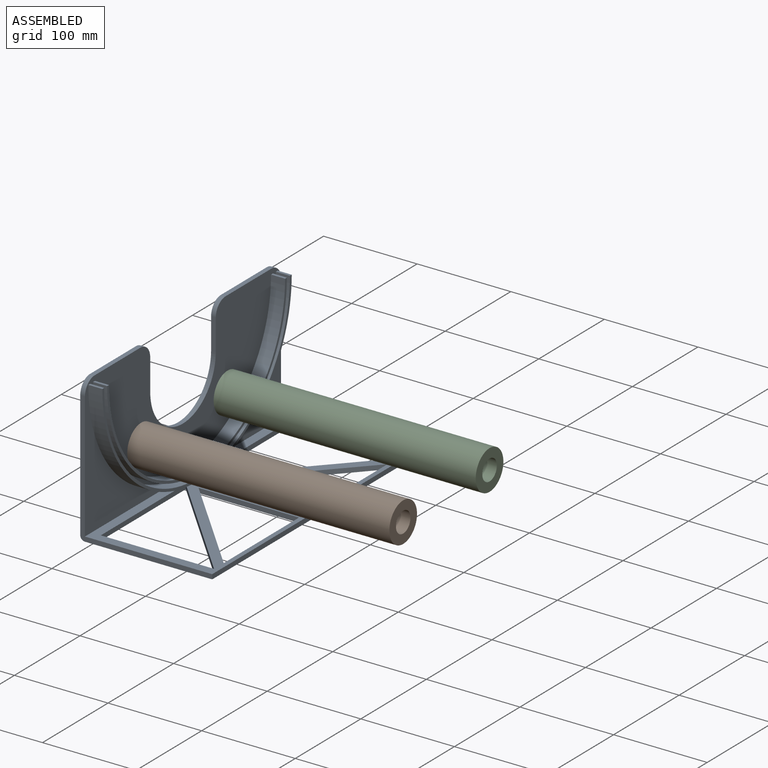
[diagram: assembled view]
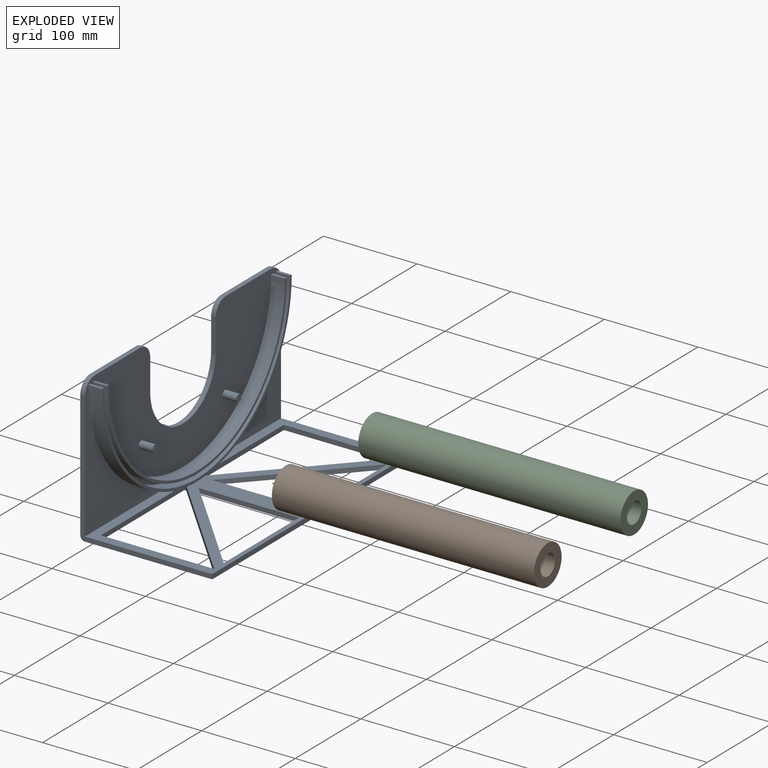
[diagram: exploded view]
GUIDED TOUR — FREECAD ASSEMBLY "filament dryer"

This assembly has 3 components, labeled P0..P2 below (a component is one placed body or linked part; the same part can appear more than once), held together by 2 modeled joints. A joint is a constraint between two components; its type names the relative motion it leaves free:
  CYLINDRICAL — leaves both rotation about and translation along the listed axis free.
Axis/direction vectors are unit vectors and 'through' points are millimeter coordinates, both in the assembly's world frame.

MATES
  1. CYLINDRICAL [Cylindrical] "Cl__ndrica": P2 <-> P0, axis (1.000, 0.000, 0.000) through (0.00, 67.85, 56.07) mm
  2. CYLINDRICAL [Cylindrical] "Cl__ndrica001": P1 <-> P0, axis (1.000, 0.000, 0.000) through (0.00, -63.92, 56.07) mm

ASSEMBLY ORDER
  1. P2 — the base component [order verified]
  2. P1 [order verified]
  3. P0 [order verified]
Order-tag legend:
  [order verified] — this step's position reverses a verified removal order: the component was checked to insert without passing through the ones already placed.

Of the 3 components, 3 carry a construction recipe — the FreeCAD feature program (sketches with constraints, then the solid features that consume them) that regenerates the part from scratch, quoted from this document or from the linked companion document it references; the rest are supplied as boundary geometry only. The tour below walks the components in assembly order: each is shown spotlighted twice — in the assembled view, then in the exploded view, where a leader line traces a displaced component back to its assembled socket (components that stay in place when exploded have no leader line; saturated green if recipe-attached, orange if geometry-only; every other component desaturated gray) — followed by its recipe or geometry summary and the mates that hold it.
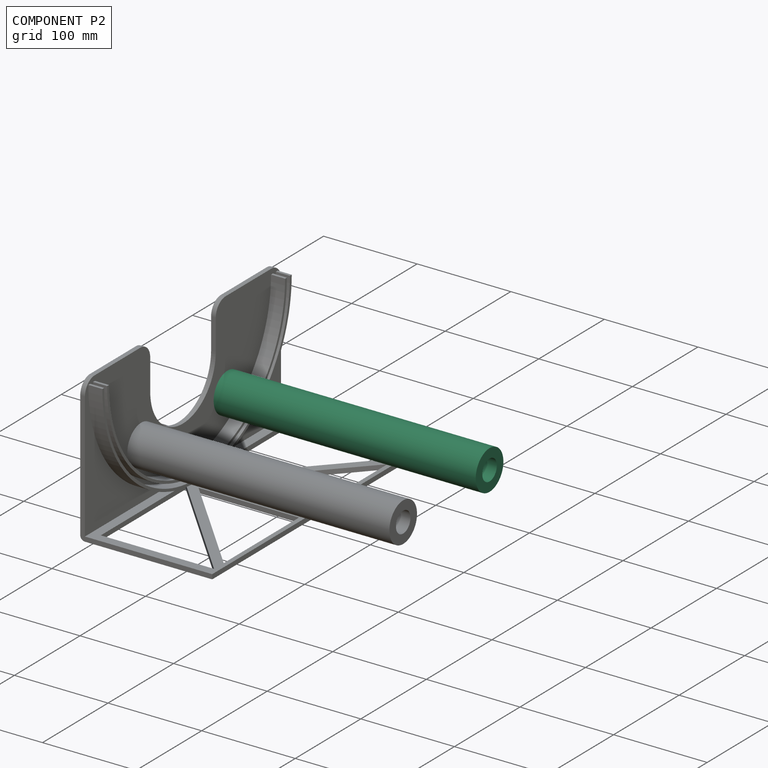
[diagram: component P2 — assembled]
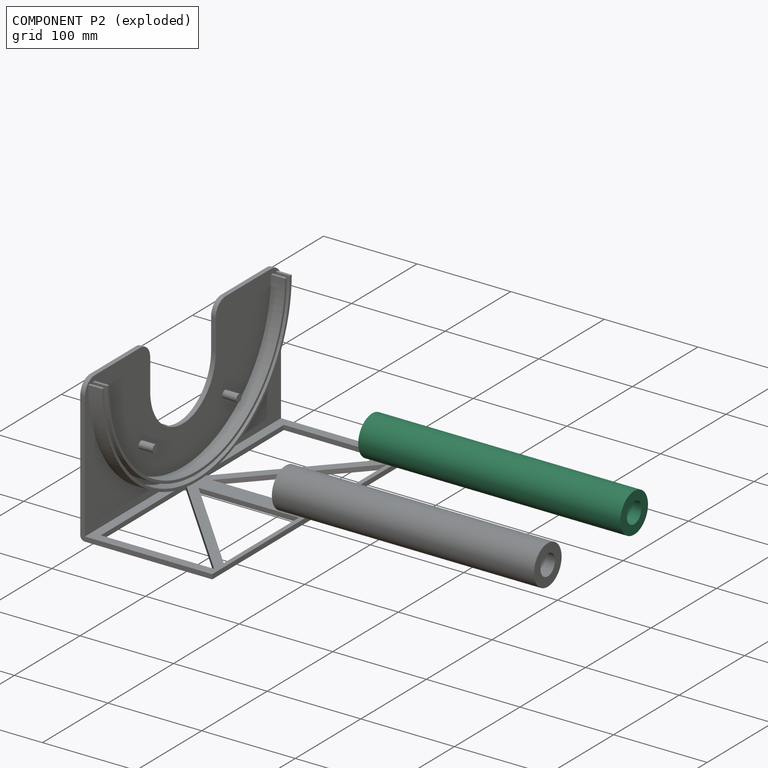
[diagram: component P2 — exploded]
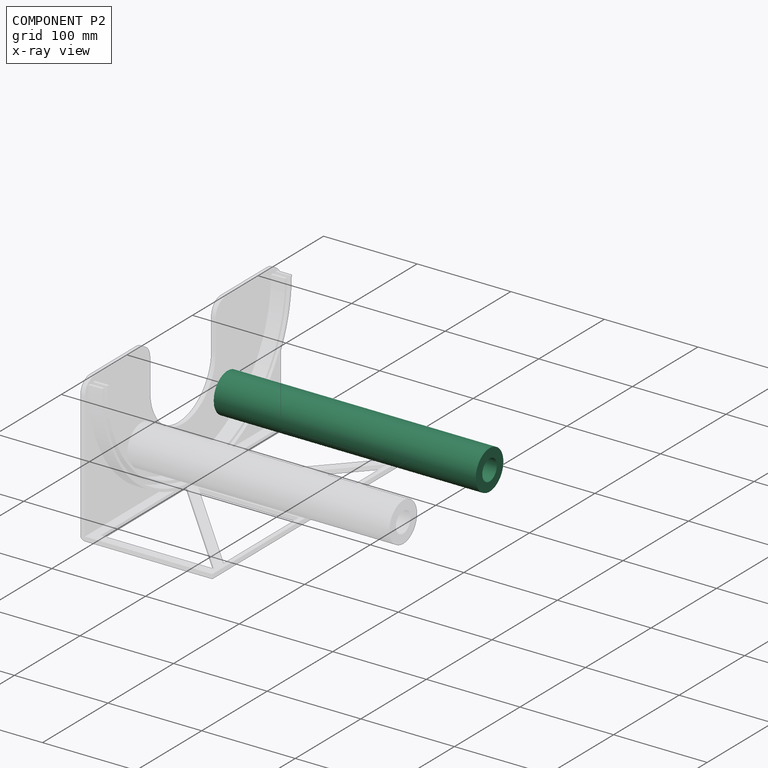
[diagram: component P2 — x-ray view]
COMPONENT P2 — same part as P1; its construction recipe is shown at P1.
Held by: CYLINDRICAL mate "Cl__ndrica" to P0.
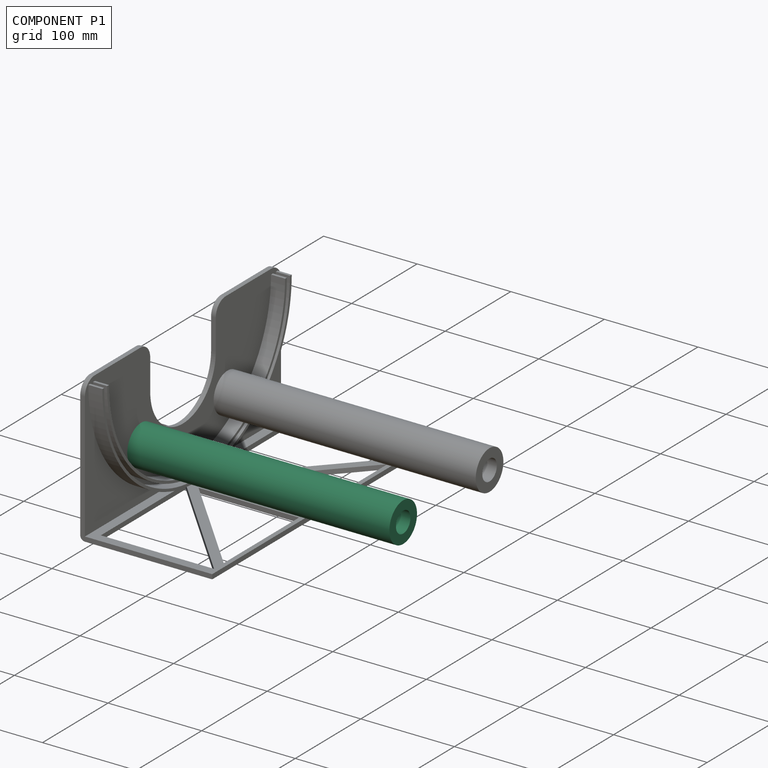
[diagram: component P1 — assembled]
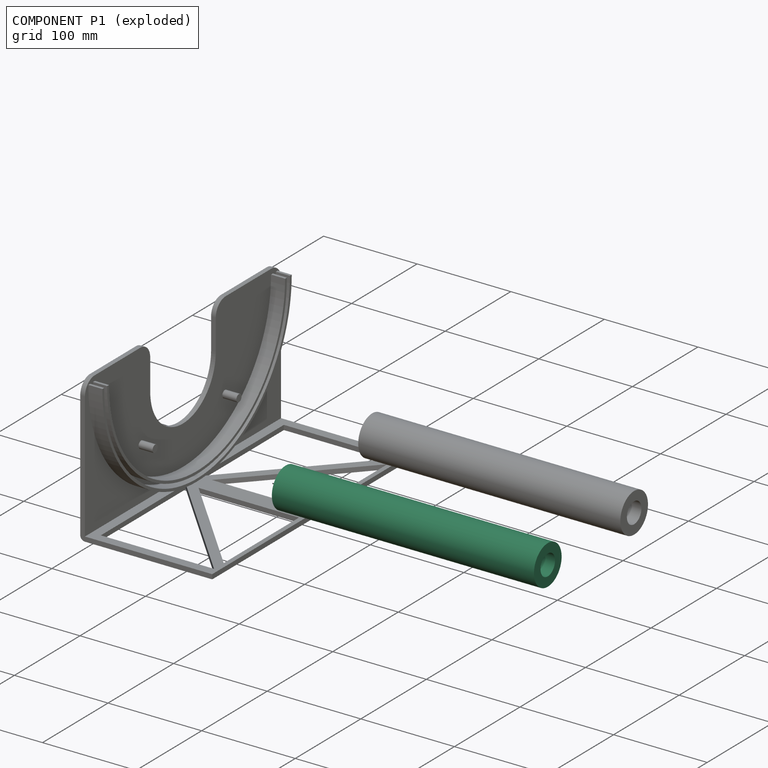
[diagram: component P1 — exploded]
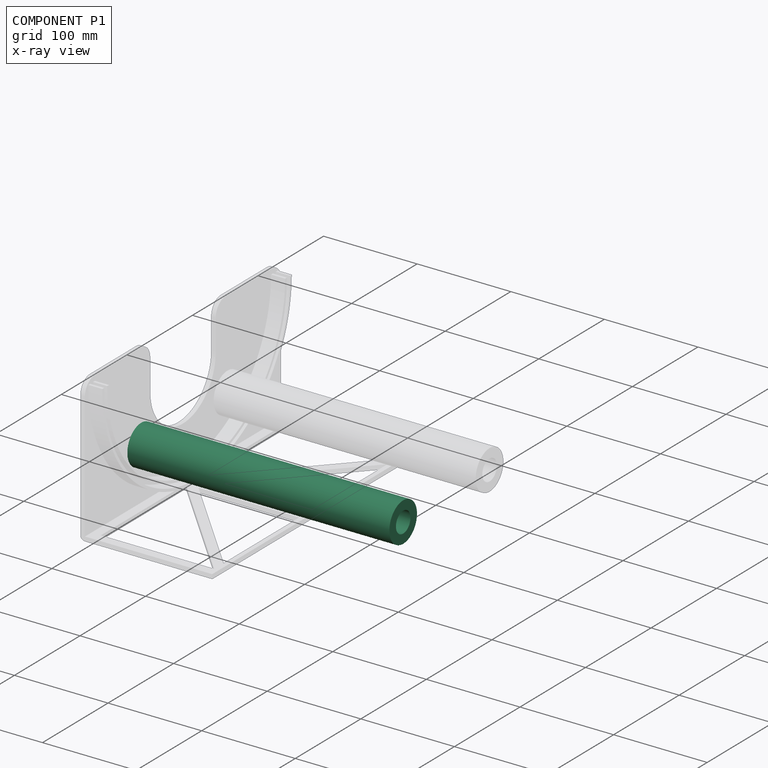
[diagram: component P1 — x-ray view]
COMPONENT P1 — recipe-attached ("spoon cilinder001", modeled in this document).
Held by: CYLINDRICAL mate "Cl__ndrica001" to P0.
Construction recipe (the document's own serialized feature program — sketch geometry with constraints, then the solid features built on it; lengths are millimeters unless a unit is written):

FEATURE [Sketcher::SketchObject] Sketch002
  ArcFitTolerance = 1e-06
  AttachmentSupport = -> [YZ_Plane001]
  FullyConstrained = true
  MakeInternals = false
  MapMode = 5
  Placement = pos=(0,0,0) rot=(0.57735,0.57735,0.57735;2.0944rad)
  sketch-geometry (2):
    g0: Circle CenterX=0 CenterY=0 CenterZ=0 NormalX=0 NormalY=0 NormalZ=1 AngleXU=0 Radius=11.075
    g1: Circle CenterX=0 CenterY=0 CenterZ=0 NormalX=0 NormalY=0 NormalZ=1 AngleXU=0 Radius=21.075
  constraints (4):
    c: Diameter(g0) = 22.15
    c: Coincident(g0,g-1)
    c: Coincident(g1,g0)
    c: Distance(g0,g1) = 10
FEATURE [PartDesign::Pad] Pad003
  Direction = (1,0,0)
  Length = 280
  Length2 = 10
  Placement = pos=(0,0,0) rot=(1,1,1;2.0944rad)
  Profile = -> Sketch002
  ReferenceAxis = -> Sketch002 [N_Axis]
  Refine = true
  Suppressed = false
  Type = 0
FEATURE [PartDesign::Body] Body001  label="spoon cilinder"
  AllowCompound = false
  Group = -> [Sketch002,Pad003]
  Origin = -> Origin001
  Tip = -> Pad003
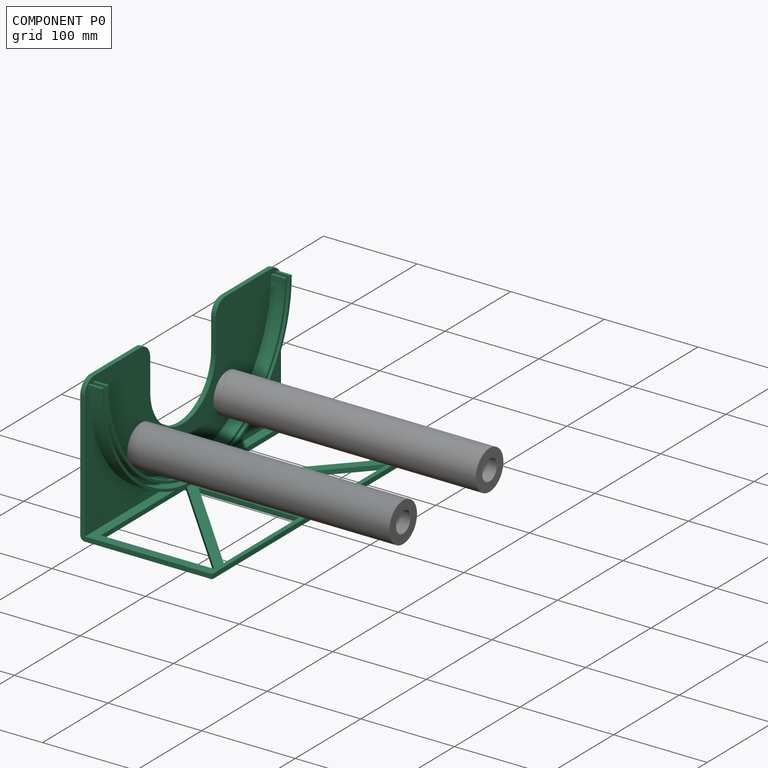
[diagram: component P0 — assembled]
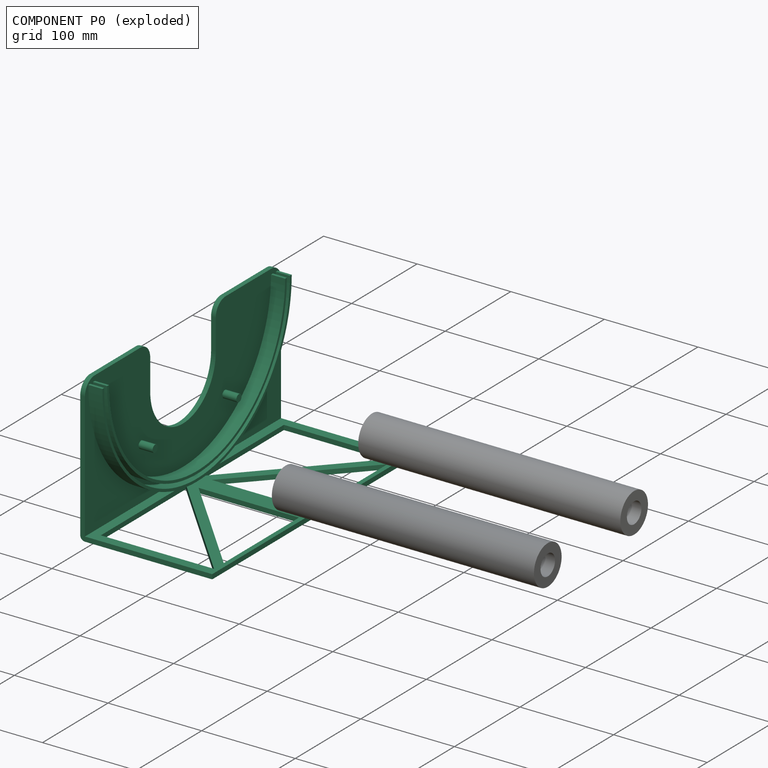
[diagram: component P0 — exploded]
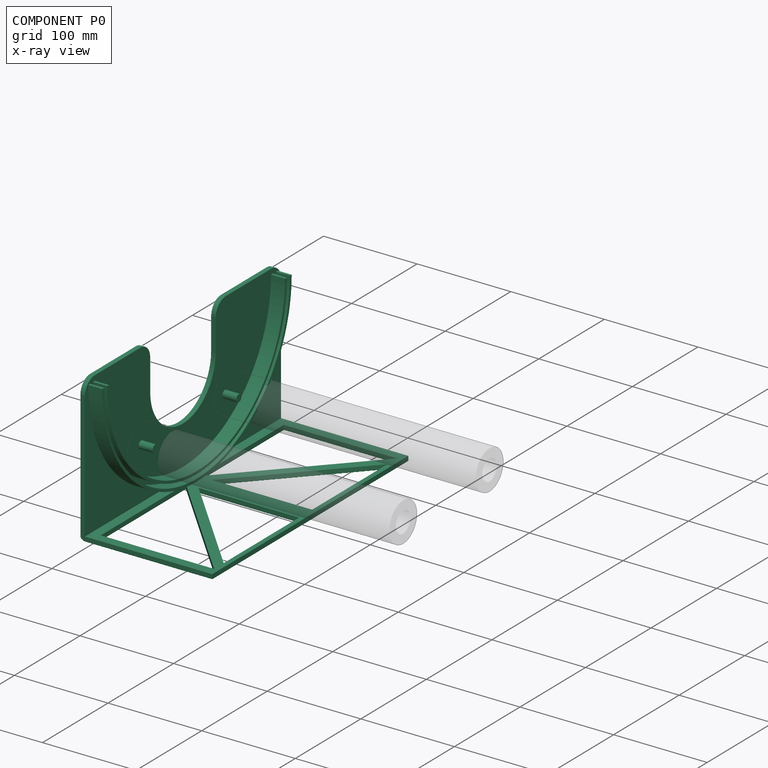
[diagram: component P0 — x-ray view]
COMPONENT P0 — recipe-attached ("spool holder001", modeled in this document).
Held by: CYLINDRICAL mate "Cl__ndrica" to P2; CYLINDRICAL mate "Cl__ndrica001" to P1.
Construction recipe (the document's own serialized feature program — sketch geometry with constraints, then the solid features built on it; lengths are millimeters unless a unit is written):

FEATURE [Sketcher::SketchObject] Sketch
  ArcFitTolerance = 1e-06
  AttachmentSupport = -> [YZ_Plane]
  FullyConstrained = false
  MakeInternals = false
  MapMode = 5
  Placement = pos=(0,0,0) rot=(0.57735,0.57735,0.57735;2.0944rad)
  sketch-geometry (16):
    g0: LineSegment StartX=-149.602 StartY=150 StartZ=0 EndX=-149.602 EndY=0 EndZ=0
    g1: LineSegment StartX=-149.602 StartY=0 StartZ=0 EndX=149.602 EndY=0 EndZ=0
    g2: LineSegment StartX=149.602 StartY=0 StartZ=0 EndX=149.602 EndY=150 EndZ=0
    g3: LineSegment StartX=-149.602 StartY=150 StartZ=0 EndX=149.602 EndY=150 EndZ=0
    g4: Circle CenterX=-63.925 CenterY=56.075 CenterZ=0 NormalX=0 NormalY=0 NormalZ=1 AngleXU=0 Radius=3.925
    g5: Circle CenterX=63.925 CenterY=56.075 CenterZ=0 NormalX=0 NormalY=0 NormalZ=1 AngleXU=0 Radius=3.925
    g6: ArcOfCircle CenterX=0 CenterY=144.472 CenterZ=0 NormalX=0 NormalY=0 NormalZ=1 AngleXU=0 Radius=134.32 StartAngle=3.14159 EndAngle=6.28319
    g7: ArcOfCircle CenterX=0 CenterY=144.472 CenterZ=0 NormalX=0 NormalY=0 NormalZ=1 AngleXU=0 Radius=137.107 StartAngle=3.14159 EndAngle=6.28319
    g8: ArcOfCircle CenterX=0 CenterY=144.472 CenterZ=0 NormalX=0 NormalY=0 NormalZ=1 AngleXU=0 Radius=141.658 StartAngle=3.14159 EndAngle=6.28319
    g9: ArcOfCircle CenterX=0 CenterY=144.472 CenterZ=0 NormalX=0 NormalY=0 NormalZ=1 AngleXU=0 Radius=144.472 StartAngle=3.14159 EndAngle=6.28319
    g10: LineSegment StartX=-134.32 StartY=144.472 StartZ=0 EndX=-137.107 EndY=144.472 EndZ=0
    g11: LineSegment StartX=-141.658 StartY=144.472 StartZ=0 EndX=-144.472 EndY=144.472 EndZ=0
    g12: LineSegment StartX=134.32 StartY=144.472 StartZ=0 EndX=137.107 EndY=144.472 EndZ=0
    g13: LineSegment StartX=141.658 StartY=144.472 StartZ=0 EndX=144.472 EndY=144.472 EndZ=0
    g14: LineSegment [constr] StartX=-141.658 StartY=144.472 StartZ=0 EndX=-137.107 EndY=144.472 EndZ=0
    g15: LineSegment [constr] StartX=137.107 StartY=144.472 StartZ=0 EndX=141.658 EndY=144.472 EndZ=0
  constraints (41):
    c: PointOnObject(g0,g-1)
    c: Vertical(g0)
    c: Coincident(g1,g0)
    c: Coincident(g2,g1)
    c: Vertical(g2)
    c: Equal(g2,g0)
    c: Symmetric(g1,g0,g-2)
    c: DistanceY(g0,g0) = 150
    c: Coincident(g3,g0)
    c: Coincident(g3,g2)
    c: Distance(g4,g3) = 90
    c: Diameter(g4) = 7.85
    c: Distance(g4,g-2) = 60
    c: Symmetric(g4,g5,g-2)
    c: Equal(g5,g4)
    c: Radius(g6) = 134.32
    c: Angle(g6) = 3.14159
    c: PointOnObject(g6,g-2)
    c: Coincident(g7,g6)
    c: Coincident(g8,g6)
    c: Coincident(g9,g6)
    c: Tangent(g9,g1)
    c: Coincident(g10,g6)
    c: Horizontal(g10)
    c: Coincident(g7,g10)
    c: Coincident(g8,g11)
    c: Coincident(g9,g11)
    c: Coincident(g12,g6)
    c: Horizontal(g12)
    c: Coincident(g7,g12)
    c: Coincident(g8,g13)
    c: Coincident(g9,g13)
    c: Horizontal(g6,g6)
    c: Horizontal(g8,g8)
    c: Horizontal(g11)
    c: Horizontal(g13)
    c: Coincident(g14,g8)
    c: Coincident(g14,g7)
    c: Coincident(g15,g7)
    c: Coincident(g15,g8)
    c: Horizontal(g15)
FEATURE [PartDesign::Pad] Pad
  Direction = (1,0,0)
  Length = 282
  Length2 = 10
  Placement = pos=(0,0,0) rot=(1,1,1;2.0944rad)
  Profile = -> Sketch [Edge1,Edge2,Edge3,Edge4]
  ReferenceAxis = -> Sketch [N_Axis]
  Refine = true
  Suppressed = false
  Type = 0
FEATURE [Sketcher::SketchObject] Sketch004
  ArcFitTolerance = 1e-06
  FullyConstrained = false
  MakeInternals = false
  MapMode = 5
  Placement = pos=(290,-6.44e-14,3.22e-14) rot=(0.57735,0.57735,0.57735;2.0944rad)
  sketch-geometry (4):
    g0: ArcOfCircle CenterX=0 CenterY=247.175 CenterZ=0 NormalX=0 NormalY=0 NormalZ=1 AngleXU=0 Radius=50 StartAngle=0 EndAngle=3.14159
    g1: ArcOfCircle CenterX=0 CenterY=102 CenterZ=0 NormalX=0 NormalY=0 NormalZ=1 AngleXU=0 Radius=50 StartAngle=3.14159 EndAngle=6.28319
    g2: LineSegment StartX=50 StartY=247.175 StartZ=0 EndX=50 EndY=102 EndZ=0
    g3: LineSegment StartX=-50 StartY=247.175 StartZ=0 EndX=-50 EndY=102 EndZ=0
  constraints (8):
    c: Tangent(g0,g2) = 1.5708
    c: Tangent(g0,g3) = -1.5708
    c: Tangent(g1,g2) = 1.5708
    c: Tangent(g1,g3) = -1.5708
    c: Equal(g0,g1)
    c: PointOnObject(g1,g-2)
    c: PointOnObject(g0,g-2)
    c: Radius(g0) = 50
FEATURE [PartDesign::Thickness] Thickness
  Base = -> Pad [Face1,Face4,Face3]
  BaseFeature = -> Pad
  Intersection = false
  Join = 0
  Mode = 0
  Refine = true
  SupportTransform = false
  Suppressed = false
  Value = 5
FEATURE [PartDesign::Pad] Pad004
  BaseFeature = -> Thickness
  Direction = (1,0,0)
  Length = 15
  Length2 = 10
  Profile = -> Sketch [Edge14,Edge12,Edge10,Edge8,Edge7,Vertex12,Edge11,Edge5,Edge6,Edge9,Edge13]
  ReferenceAxis = -> Sketch [N_Axis]
  Refine = true
  Suppressed = false
  Type = 0
FEATURE [Sketcher::SketchObject] Sketch006
  ArcFitTolerance = 1e-06
  AttachmentSupport = -> [Pad004]
  FullyConstrained = false
  MakeInternals = false
  MapMode = 5
  Placement = pos=(282,0,0) rot=(0.57735,-0.57735,-0.57735;2.0944rad)
  sketch-geometry (16):
    g0: LineSegment StartX=-149.602 StartY=150 StartZ=0 EndX=-149.602 EndY=0 EndZ=0
    g1: LineSegment StartX=-149.602 StartY=0 StartZ=0 EndX=149.602 EndY=0 EndZ=0
    g2: LineSegment StartX=149.602 StartY=0 StartZ=0 EndX=149.602 EndY=150 EndZ=0
    g3: LineSegment StartX=-149.602 StartY=150 StartZ=0 EndX=149.602 EndY=150 EndZ=0
    g4: Circle CenterX=-73.925 CenterY=56.075 CenterZ=0 NormalX=0 NormalY=0 NormalZ=1 AngleXU=0 Radius=3.925
    g5: Circle CenterX=73.925 CenterY=56.075 CenterZ=0 NormalX=0 NormalY=0 NormalZ=1 AngleXU=0 Radius=3.925
    g6: ArcOfCircle CenterX=0 CenterY=144.472 CenterZ=0 NormalX=0 NormalY=0 NormalZ=1 AngleXU=0 Radius=134.32 StartAngle=3.14159 EndAngle=6.28319
    g7: ArcOfCircle CenterX=0 CenterY=144.472 CenterZ=0 NormalX=0 NormalY=0 NormalZ=1 AngleXU=0 Radius=137.107 StartAngle=3.14159 EndAngle=6.28319
    g8: ArcOfCircle CenterX=0 CenterY=144.472 CenterZ=0 NormalX=0 NormalY=0 NormalZ=1 AngleXU=0 Radius=141.658 StartAngle=3.14159 EndAngle=6.28319
    g9: ArcOfCircle CenterX=0 CenterY=144.472 CenterZ=0 NormalX=0 NormalY=0 NormalZ=1 AngleXU=0 Radius=144.472 StartAngle=3.14159 EndAngle=6.28319
    g10: LineSegment StartX=-134.32 StartY=144.472 StartZ=0 EndX=-137.107 EndY=144.472 EndZ=0
    g11: LineSegment StartX=-141.658 StartY=144.472 StartZ=0 EndX=-144.472 EndY=144.472 EndZ=0
    g12: LineSegment StartX=134.32 StartY=144.472 StartZ=0 EndX=137.107 EndY=144.472 EndZ=0
    g13: LineSegment StartX=141.658 StartY=144.472 StartZ=0 EndX=144.472 EndY=144.472 EndZ=0
    g14: LineSegment [constr] StartX=-141.658 StartY=144.472 StartZ=0 EndX=-137.107 EndY=144.472 EndZ=0
    g15: LineSegment [constr] StartX=137.107 StartY=144.472 StartZ=0 EndX=141.658 EndY=144.472 EndZ=0
  constraints (41):
    c: PointOnObject(g0,g-1)
    c: Vertical(g0)
    c: Coincident(g1,g0)
    c: Coincident(g2,g1)
    c: Vertical(g2)
    c: Equal(g2,g0)
    c: Symmetric(g1,g0,g-2)
    c: DistanceY(g0,g0) = 150
    c: Coincident(g3,g0)
    c: Coincident(g3,g2)
    c: Distance(g4,g3) = 90
    c: Diameter(g4) = 7.85
    c: Distance(g4,g-2) = 70
    c: Symmetric(g4,g5,g-2)
    c: Equal(g5,g4)
    c: Radius(g6) = 134.32
    c: Angle(g6) = 3.14159
    c: PointOnObject(g6,g-2)
    c: Coincident(g7,g6)
    c: Coincident(g8,g6)
    c: Coincident(g9,g6)
    c: Tangent(g9,g1)
    c: Coincident(g10,g6)
    c: Horizontal(g10)
    c: Coincident(g7,g10)
    c: Coincident(g8,g11)
    c: Coincident(g9,g11)
    c: Coincident(g12,g6)
    c: Horizontal(g12)
    c: Coincident(g7,g12)
    c: Coincident(g8,g13)
    c: Coincident(g9,g13)
    c: Horizontal(g6,g6)
    c: Horizontal(g8,g8)
    c: Horizontal(g11)
    c: Horizontal(g13)
    c: Coincident(g14,g8)
    c: Coincident(g14,g7)
    c: Coincident(g15,g7)
    c: Coincident(g15,g8)
    c: Horizontal(g15)
FEATURE [PartDesign::Pad] Pad005
  BaseFeature = -> Pad004
  Direction = (-1,0,0)
  Length = 15
  Length2 = 10
  Profile = -> Sketch006 [Edge5,Edge8,Edge10,Edge12,Edge14,Edge6,Edge9,Edge13,Edge11,Edge7]
  ReferenceAxis = -> Sketch006 [N_Axis]
  Refine = true
  Suppressed = false
  Type = 0
FEATURE [PartDesign::Pocket] Pocket
  BaseFeature = -> Pad005
  Direction = (-1,-1e-16,1e-16)
  Length = 5
  Length2 = 5
  Profile = -> Sketch004
  ReferenceAxis = -> Sketch004 [N_Axis]
  Refine = true
  Suppressed = false
  Type = 1
FEATURE [PartDesign::Fillet] Fillet
  Base = -> Pocket [Edge61,Edge101,Edge60,Edge77,Edge52,Edge9,Edge58,Edge12]
  BaseFeature = -> Pocket
  Radius = 15
  Refine = true
  SupportTransform = false
  Suppressed = false
  UseAllEdges = false
FEATURE [Sketcher::SketchObject] Sketch007
  ArcFitTolerance = 1e-06
  AttachmentSupport = -> [Fillet]
  ExternalGeometry = -> [Fillet]
  FullyConstrained = false
  MakeInternals = false
  MapMode = 5
  Placement = pos=(0,0,3e-16) rot=(0,0,1;0rad)
  sketch-geometry (30):
    g0: LineSegment [constr] StartX=0 StartY=149.602 StartZ=0 EndX=0 EndY=-149.602 EndZ=0
    g1: LineSegment [constr] StartX=0 StartY=-149.602 StartZ=0 EndX=282 EndY=-149.602 EndZ=0
    g2: LineSegment [constr] StartX=282 StartY=-149.602 StartZ=0 EndX=282 EndY=149.602 EndZ=0
    g3: LineSegment [constr] StartX=282 StartY=149.602 StartZ=0 EndX=0 EndY=149.602 EndZ=0
    g4: LineSegment [constr] StartX=141 StartY=230.978 StartZ=0 EndX=141 EndY=-178.044 EndZ=0
    g5: LineSegment StartX=10 StartY=139.602 StartZ=0 EndX=10 EndY=10 EndZ=0
    g6: LineSegment StartX=10 StartY=10 StartZ=0 EndX=131 EndY=139.602 EndZ=0
    g7: LineSegment StartX=10 StartY=139.602 StartZ=0 EndX=131 EndY=139.602 EndZ=0
    g8: LineSegment StartX=23.6809 StartY=10 StartZ=0 EndX=131 EndY=124.949 EndZ=0
    g9: LineSegment StartX=23.6809 StartY=10 StartZ=0 EndX=131 EndY=10 EndZ=0
    g10: LineSegment StartX=131 StartY=10 StartZ=0 EndX=131 EndY=124.949 EndZ=0
    g11: LineSegment StartX=272 StartY=139.602 StartZ=0 EndX=272 EndY=10 EndZ=0
    g12: LineSegment StartX=272 StartY=139.602 StartZ=0 EndX=151 EndY=139.602 EndZ=0
    g13: LineSegment StartX=272 StartY=10 StartZ=0 EndX=151 EndY=139.602 EndZ=0
    g14: LineSegment StartX=258.319 StartY=10 StartZ=0 EndX=151 EndY=124.949 EndZ=0
    g15: LineSegment StartX=151 StartY=10 StartZ=0 EndX=151 EndY=124.949 EndZ=0
    g16: LineSegment StartX=258.319 StartY=10 StartZ=0 EndX=151 EndY=10 EndZ=0
    g17: LineSegment [constr] StartX=141 StartY=-230.978 StartZ=0 EndX=141 EndY=178.044 EndZ=0
    g18: LineSegment StartX=10 StartY=-139.602 StartZ=0 EndX=10 EndY=-10 EndZ=0
    g19: LineSegment StartX=10 StartY=-10 StartZ=0 EndX=131 EndY=-139.602 EndZ=0
    g20: LineSegment StartX=10 StartY=-139.602 StartZ=0 EndX=131 EndY=-139.602 EndZ=0
    g21: LineSegment StartX=23.6809 StartY=-10 StartZ=0 EndX=131 EndY=-124.949 EndZ=0
    g22: LineSegment StartX=23.6809 StartY=-10 StartZ=0 EndX=131 EndY=-10 EndZ=0
    g23: LineSegment StartX=131 StartY=-10 StartZ=0 EndX=131 EndY=-124.949 EndZ=0
    g24: LineSegment StartX=272 StartY=-139.602 StartZ=0 EndX=272 EndY=-10 EndZ=0
    g25: LineSegment StartX=272 StartY=-139.602 StartZ=0 EndX=151 EndY=-139.602 EndZ=0
    g26: LineSegment StartX=272 StartY=-10 StartZ=0 EndX=151 EndY=-139.602 EndZ=0
    g27: LineSegment StartX=258.319 StartY=-10 StartZ=0 EndX=151 EndY=-124.949 EndZ=0
    g28: LineSegment StartX=151 StartY=-10 StartZ=0 EndX=151 EndY=-124.949 EndZ=0
    g29: LineSegment StartX=258.319 StartY=-10 StartZ=0 EndX=151 EndY=-10 EndZ=0
  constraints (59):
    c: Coincident(g0,g1)
    c: Coincident(g1,g2)
    c: Coincident(g2,g3)
    c: Coincident(g3,g0)
    c: Vertical(g0)
    c: Vertical(g2)
    c: Horizontal(g1)
    c: Horizontal(g3)
    c: Coincident(g0,g-3)
    c: Coincident(g1,g-4)
    c: Symmetric(g0,g1,g4)
    c: Vertical(g5)
    c: Coincident(g6,g5)
    c: Coincident(g7,g5)
    c: Coincident(g7,g6)
    c: Horizontal(g7)
    c: Parallel(g6,g8)
    c: Distance(g8,g6) = 10
    c: Distance(g3,g7) = 10
    c: Distance(g0,g5) = 10
    c: Distance(g6,g4) = 10
    c: Distance(g5,g-1) = 10
    c: Coincident(g9,g8)
    c: Horizontal(g9)
    c: Coincident(g10,g9)
    c: Coincident(g10,g8)
    c: Vertical(g10)
    c: Distance(g9,g4) = 10
    c: Distance(g9,g-1) = 10
    c: Coincident(g13,g11)
    c: Coincident(g12,g11)
    c: Coincident(g12,g13)
    c: Parallel(g13,g14)
    c: Distance(g14,g13) = 10
    c: Coincident(g16,g14)
    c: Coincident(g15,g16)
    c: Coincident(g15,g14)
    c: Vertical(g18)
    c: Coincident(g19,g18)
    c: Coincident(g20,g18)
    c: Coincident(g20,g19)
    c: Horizontal(g20)
    c: Parallel(g19,g21)
    c: Distance(g21,g19) = 10
    c: Distance(g19,g17) = 10
    c: Coincident(g22,g21)
    c: Horizontal(g22)
    c: Coincident(g23,g22)
    c: Coincident(g23,g21)
    c: Vertical(g23)
    c: Distance(g22,g17) = 10
    c: Coincident(g26,g24)
    c: Coincident(g25,g24)
    c: Coincident(g25,g26)
    c: Parallel(g26,g27)
    c: Distance(g27,g26) = 10
    c: Coincident(g29,g27)
    c: Coincident(g28,g29)
    c: Coincident(g28,g27)
FEATURE [PartDesign::Pocket] Pocket001
  BaseFeature = -> Fillet
  Direction = (0,0,-1)
  Length = 5
  Length2 = 5
  Profile = -> Sketch007
  ReferenceAxis = -> Sketch007 [N_Axis]
  Refine = true
  Suppressed = false
  Type = 1
FEATURE [PartDesign::Point] DatumPoint
  AttacherType = Attacher::AttachEnginePoint
  AttachmentSupport = -> [Pocket001]
  MapMode = 37
  Placement = pos=(141,1.69326e-06,3e-16) rot=(0,0,1;0rad)
FEATURE [PartDesign::Plane] DatumPlane
  AttachmentSupport = -> [YZ_Plane,DatumPoint]
  Length = 344.969
  MapMode = 53
  Placement = pos=(141,-1.57e-14,1.57e-14) rot=(0.57735,0.57735,0.57735;2.0944rad)
  ResizeMode = 0
  Width = 220.765
FEATURE [PartDesign::Pocket] Pocket002
  BaseFeature = -> Pocket001
  Direction = (-1,0,0)
  Length = 5
  Length2 = 5
  Profile = -> DatumPlane [Plane]
  Refine = true
  Suppressed = false
  Type = 0
FEATURE [PartDesign::Body] Body  label="spool holder"
  AllowCompound = false
  Group = -> [Sketch,Pad,Sketch004,Thickness,Pad004,Sketch006,Pad005,Pocket,Fillet,Sketch007,Pocket001,DatumPoint,DatumPlane,Pocket002]
  Origin = -> Origin
  Tip = -> Pocket002
PROVENANCE & LICENSES
Assembly and component geometry: a FreeCAD (.FCStd) document from a public repository crawl; components, placements and joints were extracted with FreeCAD and each solid tessellated.
Construction recipes: the document's own serialized feature recipes (and, for linked parts, the recipes of companion documents from the same project).
License: as declared in the source repository (recorded in the dataset sidecar).
Joints: native FreeCAD joints and A2plus constraints are mapped to standard mate types.
Verification: 3 of this assembly's 3 components carry a construction recipe (3 from this document itself); the rest are geometry-only. Every component's tessellation passed the extraction mesh gates (mesh-volume checksum against the B-rep where available, bounding-box inflation <= 2%).
Renders: orthographic iso camera (az 35 / el 25); the floor grid conveys scale (grid pitch printed in each image; no ruler). In the exploded view each component is displaced by its stored offset vector: the offsets alone carry the explosion direction (mate normal/axis signs are not orientation cues and do not encode it), and separation distances are assigned per mate-chain, not proportionally to assembly-order depth.
